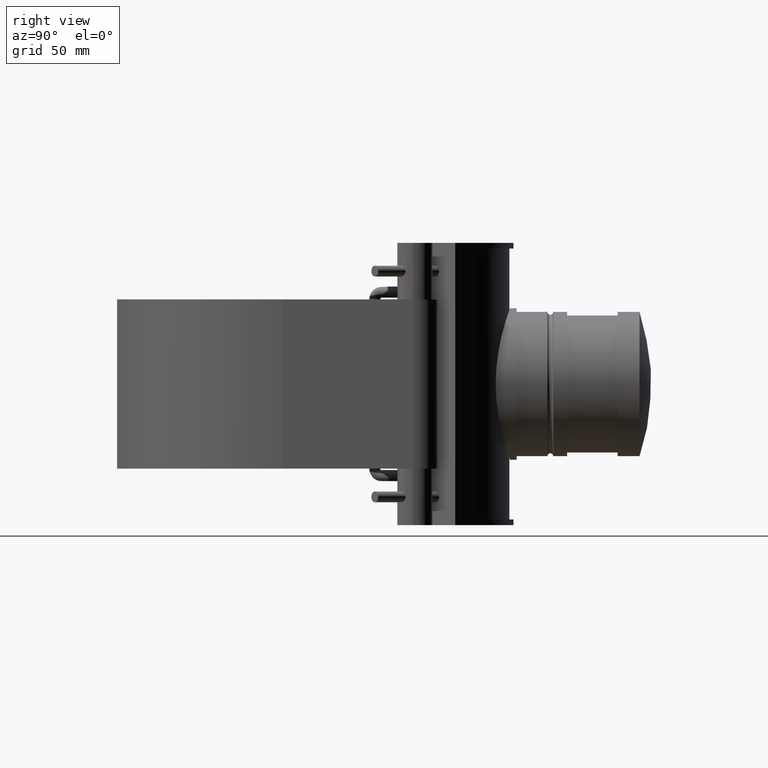
[diagram: clean part render]
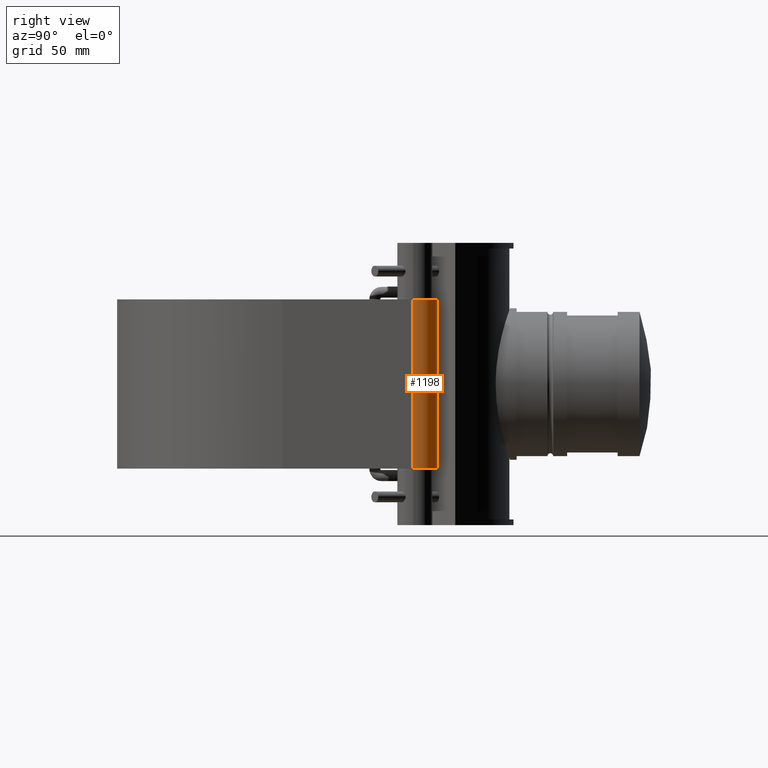
[diagram: same view with one face highlighted and labeled with its STEP entity id]
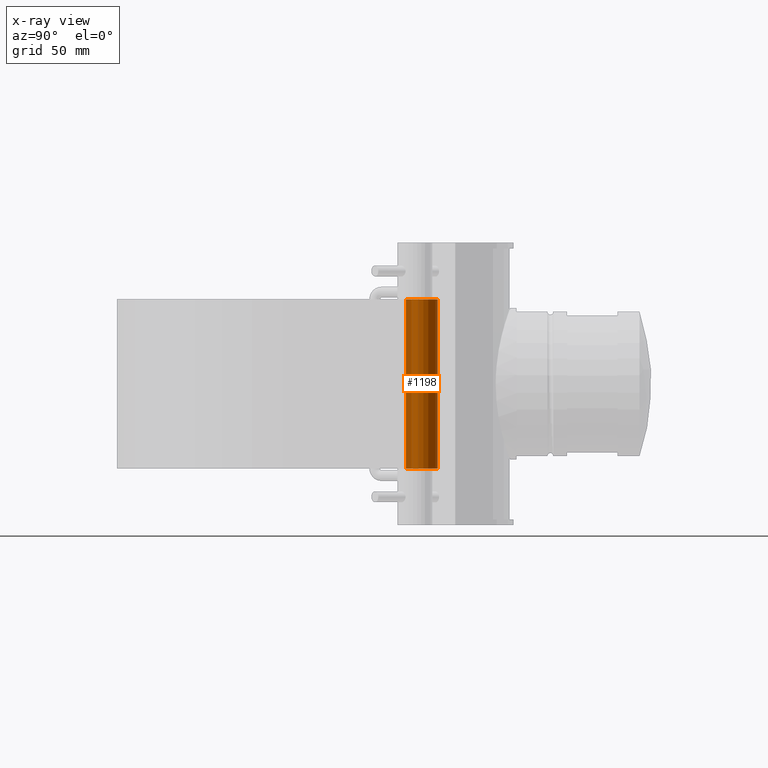
[diagram: x-ray of the same camera — body ghosted, the highlighted face saturated]
A machine part, right view. The second image highlights one B-rep face of the part: STEP entity #1198.
The next image is the same camera in x-ray: the body ghosted, the highlighted face saturated — about 0% of this face is hidden behind the body in this view.
In plain terms, the highlighted cylindrical surface (edge-blend (fillet) strip) has radius 14.2788 mm, axis along (0, 0, 1).
Its self-contained STEP definition (entity closure, byte-faithful):
#118=LINE('',#2109,#221);
#120=LINE('',#2113,#223);
#221=VECTOR('',#1617,105.6);
#223=VECTOR('',#1623,105.6);
#364=FACE_OUTER_BOUND('',#452,.T.);
#452=EDGE_LOOP('',(#1077,#1078,#1079,#1080));
#503=CIRCLE('',#1280,14.2788461538461);
#513=CIRCLE('',#1291,14.2788461538461);
#602=VERTEX_POINT('',#2040);
#603=VERTEX_POINT('',#2041);
#621=VERTEX_POINT('',#2079);
#622=VERTEX_POINT('',#2081);
#745=EDGE_CURVE('',#602,#603,#503,.T.);
#765=EDGE_CURVE('',#621,#622,#513,.T.);
#779=EDGE_CURVE('',#622,#602,#118,.T.);
#781=EDGE_CURVE('',#603,#621,#120,.T.);
#1077=ORIENTED_EDGE('',*,*,#779,.F.);
#1078=ORIENTED_EDGE('',*,*,#765,.F.);
#1079=ORIENTED_EDGE('',*,*,#781,.F.);
#1080=ORIENTED_EDGE('',*,*,#745,.F.);
#1133=CYLINDRICAL_SURFACE('',#1313,14.2788461538461);
#1198=ADVANCED_FACE('',(#364),#1133,.T.);
#1280=AXIS2_PLACEMENT_3D('',#2042,#1547,#1548);
#1291=AXIS2_PLACEMENT_3D('',#2082,#1579,#1580);
#1313=AXIS2_PLACEMENT_3D('',#2123,#1637,#1638);
#1547=DIRECTION('center_axis',(0.,0.,-1.));
#1548=DIRECTION('ref_axis',(0.690070767724301,-0.723741898422631,0.));
#1579=DIRECTION('center_axis',(0.,0.,1.));
#1580=DIRECTION('ref_axis',(0.690070767724301,-0.723741898422631,0.));
#1617=DIRECTION('',(0.,0.,-1.));
#1623=DIRECTION('',(0.,0.,1.));
#1637=DIRECTION('center_axis',(0.,0.,1.));
#1638=DIRECTION('ref_axis',(0.690070767724301,-0.723741898422631,0.));
#2040=CARTESIAN_POINT('',(96.6142102747308,64.3485310862336,-52.8));
#2041=CARTESIAN_POINT('',(123.92370750178,68.4702529301665,-52.8));
#2042=CARTESIAN_POINT('Origin',(109.727041647167,70.,-52.8));
#2079=CARTESIAN_POINT('',(123.92370750178,68.4702529301665,52.8));
#2081=CARTESIAN_POINT('',(96.6142102747308,64.3485310862336,52.8));
#2082=CARTESIAN_POINT('Origin',(109.727041647167,70.,52.8));
#2109=CARTESIAN_POINT('',(96.6142102747308,64.3485310862336,0.));
#2113=CARTESIAN_POINT('',(123.92370750178,68.4702529301665,0.));
#2123=CARTESIAN_POINT('Origin',(109.727041647167,70.,0.));